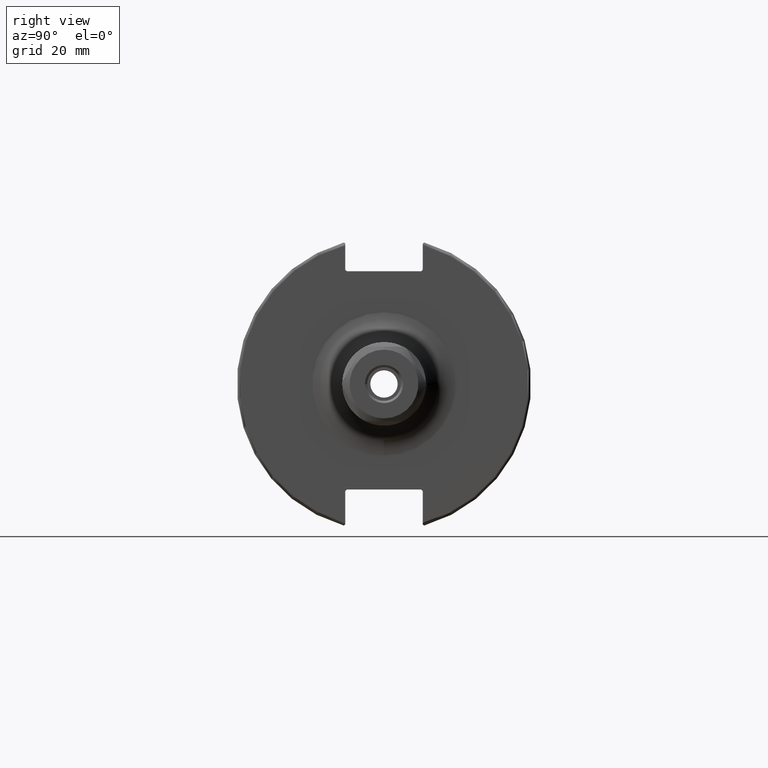
[diagram: clean part render]
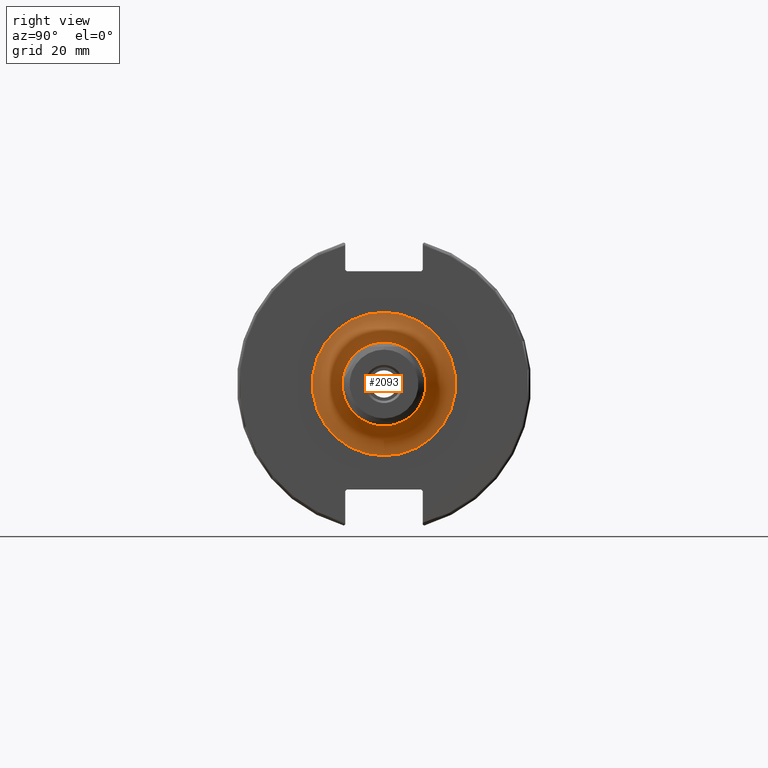
[diagram: same view with one face highlighted and labeled with its STEP entity id]
A machine part, right view. The second image highlights one B-rep face of the part: STEP entity #2093.
In plain terms, the highlighted toroidal blend (fillet) surface has major radius 24 mm and minor (blend) radius 10 mm.
Its self-contained STEP definition (entity closure, byte-faithful):
#100=TOROIDAL_SURFACE('',#2314,24.,10.);
#276=FACE_OUTER_BOUND('',#403,.T.);
#403=EDGE_LOOP('',(#1494,#1495,#1496,#1497,#1498));
#816=CIRCLE('',#2304,14.);
#817=CIRCLE('',#2305,14.);
#823=CIRCLE('',#2315,10.);
#824=CIRCLE('',#2316,24.);
#931=VERTEX_POINT('',#3279);
#932=VERTEX_POINT('',#3281);
#936=VERTEX_POINT('',#3297);
#1147=EDGE_CURVE('',#932,#931,#816,.T.);
#1148=EDGE_CURVE('',#931,#932,#817,.T.);
#1155=EDGE_CURVE('',#932,#936,#823,.T.);
#1156=EDGE_CURVE('',#936,#936,#824,.T.);
#1494=ORIENTED_EDGE('',*,*,#1148,.T.);
#1495=ORIENTED_EDGE('',*,*,#1155,.T.);
#1496=ORIENTED_EDGE('',*,*,#1156,.T.);
#1497=ORIENTED_EDGE('',*,*,#1155,.F.);
#1498=ORIENTED_EDGE('',*,*,#1147,.T.);
#2093=ADVANCED_FACE('',(#276),#100,.F.);
#2304=AXIS2_PLACEMENT_3D('',#3282,#2586,#2587);
#2305=AXIS2_PLACEMENT_3D('',#3283,#2588,#2589);
#2314=AXIS2_PLACEMENT_3D('',#3296,#2607,#2608);
#2315=AXIS2_PLACEMENT_3D('',#3298,#2609,#2610);
#2316=AXIS2_PLACEMENT_3D('',#3299,#2611,#2612);
#2586=DIRECTION('center_axis',(-1.,0.,0.));
#2587=DIRECTION('ref_axis',(0.,-1.,-1.22464679914735E-16));
#2588=DIRECTION('center_axis',(-1.,0.,0.));
#2589=DIRECTION('ref_axis',(0.,-1.,-1.22464679914735E-16));
#2607=DIRECTION('center_axis',(-1.,0.,0.));
#2608=DIRECTION('ref_axis',(0.,0.,1.));
#2609=DIRECTION('center_axis',(0.,-1.,1.22464679914735E-16));
#2610=DIRECTION('ref_axis',(0.,-1.22464679914735E-16,-1.));
#2611=DIRECTION('center_axis',(1.,0.,0.));
#2612=DIRECTION('ref_axis',(0.,-1.,-1.22464679914735E-16));
#3279=CARTESIAN_POINT('',(29.05,-14.,-1.71450551880629E-15));
#3281=CARTESIAN_POINT('',(29.05,-1.71450551880629E-15,-14.));
#3282=CARTESIAN_POINT('Origin',(29.05,0.,0.));
#3283=CARTESIAN_POINT('Origin',(29.05,0.,0.));
#3296=CARTESIAN_POINT('Origin',(29.05,0.,0.));
#3297=CARTESIAN_POINT('',(19.05,-2.93915231795365E-15,-24.));
#3298=CARTESIAN_POINT('Origin',(29.05,-2.93915231795365E-15,-24.));
#3299=CARTESIAN_POINT('Origin',(19.05,0.,0.));